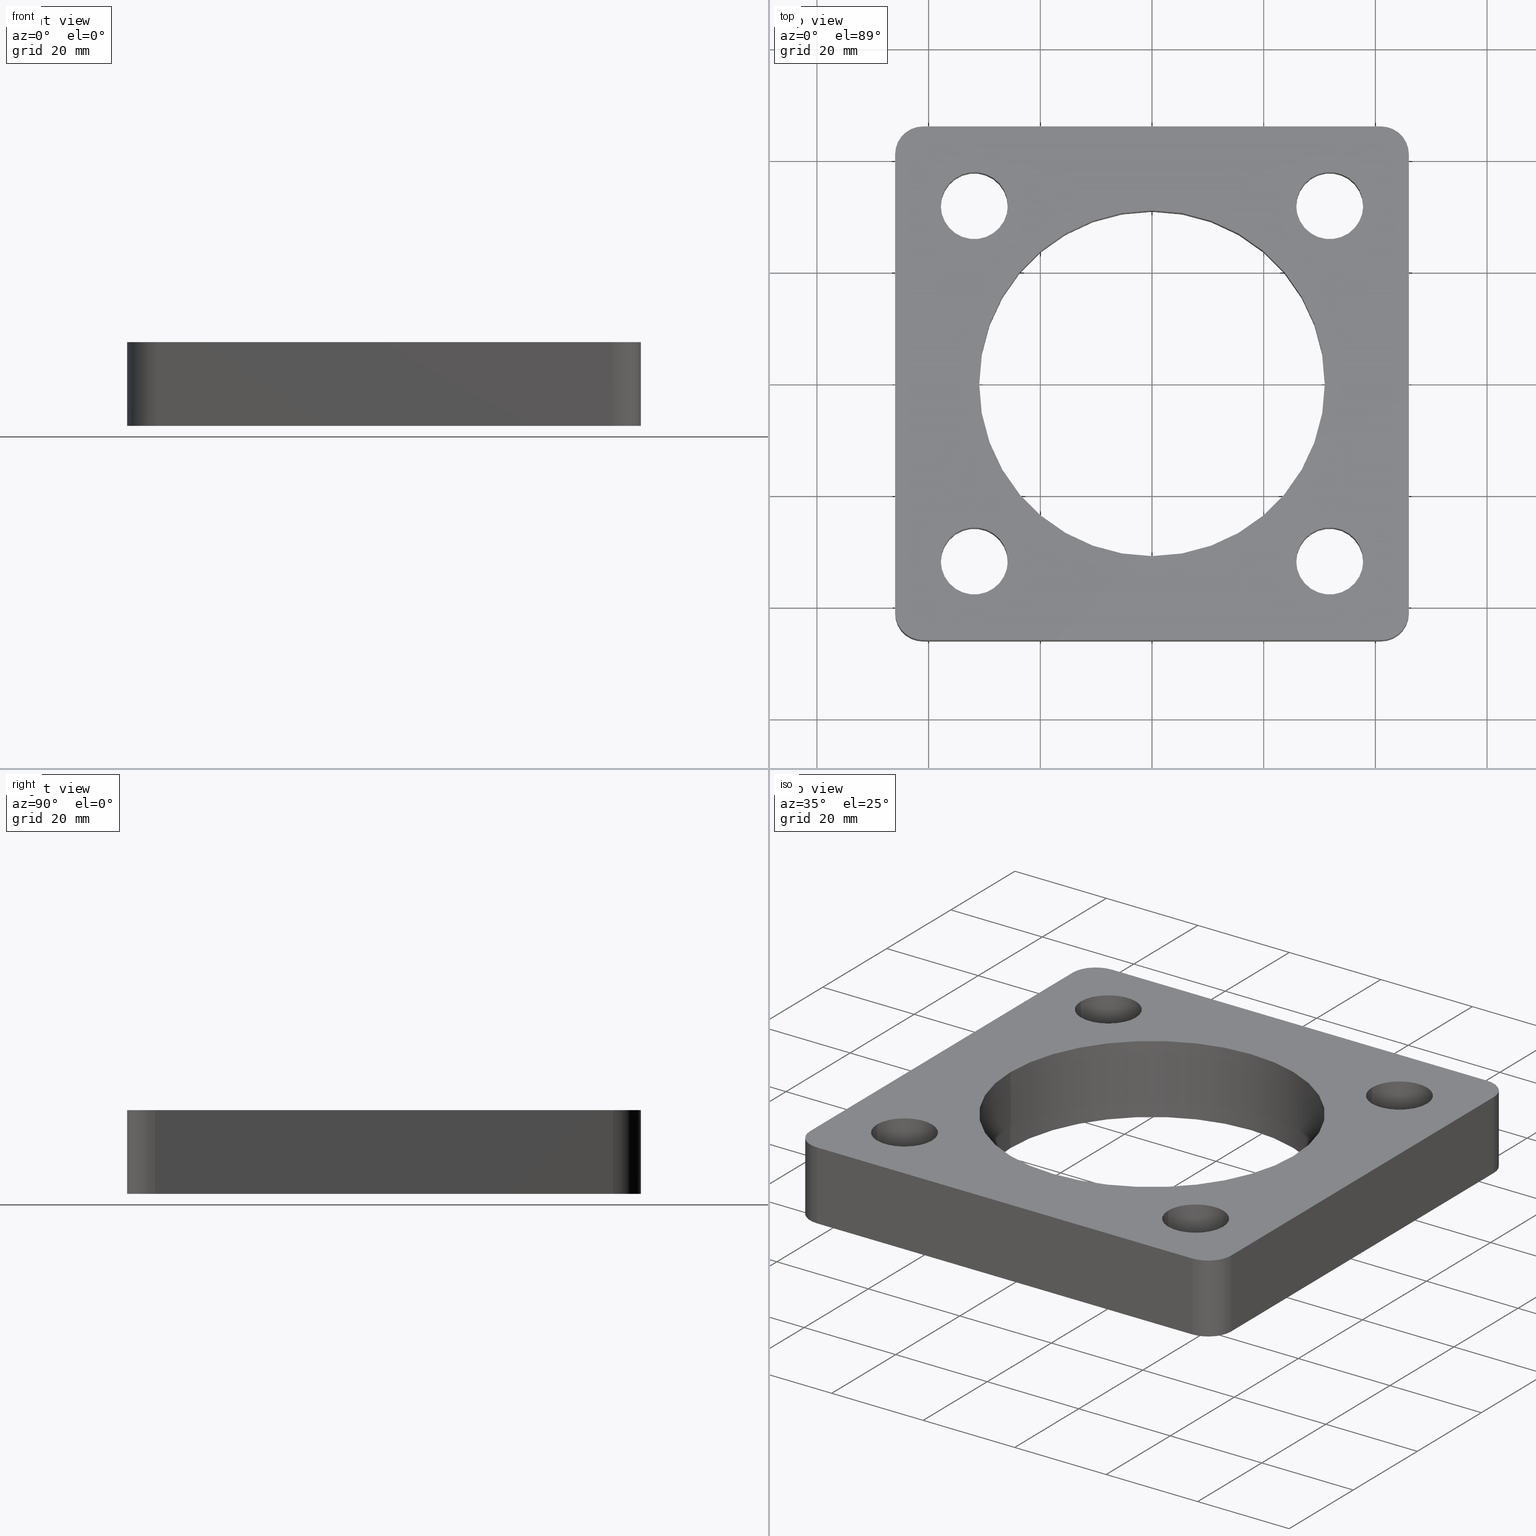
[diagram: canonical four-view strip — front | top / right | iso, engineering-drawing reading convention]
A machine part, canonical four-view strip (front | top / right | iso — engineering-drawing reading convention). The complete STEP part file that produces these views, byte-faithful:
ISO-10303-21;
HEADER;
FILE_DESCRIPTION (( 'STEP AP203' ),
    '1' );
FILE_NAME ('3674-35-10_REV_.step',
    '2026-02-06T22:19:26',
    ( '' ),
    ( '' ),
    'SwSTEP 2.0',
    'SolidWorks 2025',
    '' );
FILE_SCHEMA (( 'CONFIG_CONTROL_DESIGN' ));
ENDSEC;

DATA;
#1 = ORIENTED_EDGE ( 'NONE', *, *, #337, .T. ) ;
#2 = LINE ( 'NONE', #463, #218 ) ;
#3 = DIRECTION ( 'NONE',  ( 0.000000000000000000, 0.000000000000000000, 1.000000000000000000 ) ) ;
#4 = COORDINATED_UNIVERSAL_TIME_OFFSET ( 10, 0, .AHEAD. ) ;
#5 = AXIS2_PLACEMENT_3D ( 'NONE', #402, #3, #277 ) ;
#6 = AXIS2_PLACEMENT_3D ( 'NONE', #617, #609, #262 ) ;
#7 = DIRECTION ( 'NONE',  ( 0.000000000000000000, -0.000000000000000000, -1.000000000000000000 ) ) ;
#8 = EDGE_CURVE ( 'NONE', #148, #709, #396, .T. ) ;
#9 = DIRECTION ( 'NONE',  ( -0.000000000000000000, -0.000000000000000000, 1.000000000000000000 ) ) ;
#10 = ORIENTED_EDGE ( 'NONE', *, *, #691, .T. ) ;
#11 = LINE ( 'NONE', #587, #91 ) ;
#12 = ADVANCED_FACE ( 'NONE', ( #103, #270, #219, #743, #627, #442 ), #570, .F. ) ;
#13 = CARTESIAN_POINT ( 'NONE',  ( 0.000000000000000000, 0.000000000000000000, -1.000000000000000000 ) ) ;
#14 = ORIENTED_EDGE ( 'NONE', *, *, #491, .T. ) ;
#15 = CARTESIAN_POINT ( 'NONE',  ( 30.95000000000000284, 0.000000000000000000, -1.000000000000000000 ) ) ;
#16 = ORIENTED_EDGE ( 'NONE', *, *, #725, .F. ) ;
#17 = DIRECTION ( 'NONE',  ( 1.000000000000000000, 0.000000000000000000, 0.000000000000000000 ) ) ;
#18 = AXIS2_PLACEMENT_3D ( 'NONE', #636, #405, #575 ) ;
#19 = EDGE_LOOP ( 'NONE', ( #674, #339, #304, #93 ) ) ;
#20 = EDGE_CURVE ( 'NONE', #26, #718, #27, .T. ) ;
#21 = DIRECTION ( 'NONE',  ( 0.000000000000000000, -0.000000000000000000, -1.000000000000000000 ) ) ;
#22 = PERSON_AND_ORGANIZATION_ROLE ( 'classification_officer' ) ;
#23 = EDGE_LOOP ( 'NONE', ( #476, #330 ) ) ;
#24 = CARTESIAN_POINT ( 'NONE',  ( -25.81980515339504123, 31.81980515339424187, -16.00000000000000000 ) ) ;
#25 = APPROVAL_STATUS ( 'not_yet_approved' ) ;
#26 = VERTEX_POINT ( 'NONE', #447 ) ;
#27 = CIRCLE ( 'NONE', #694, 5.999999999999998224 ) ;
#28 = EDGE_CURVE ( 'NONE', #510, #75, #551, .T. ) ;
#29 = VECTOR ( 'NONE', #314, 1000.000000000000000 ) ;
#30 = LINE ( 'NONE', #602, #64 ) ;
#31 = EDGE_LOOP ( 'NONE', ( #99, #393, #559, #193 ) ) ;
#32 = FACE_OUTER_BOUND ( 'NONE', #601, .T. ) ;
#33 = EDGE_CURVE ( 'NONE', #404, #670, #614, .T. ) ;
#34 = ORIENTED_EDGE ( 'NONE', *, *, #299, .T. ) ;
#35 = CARTESIAN_POINT ( 'NONE',  ( 31.81980515339457583, 31.81980515339470728, -16.00000000000000000 ) ) ;
#36 = VERTEX_POINT ( 'NONE', #163 ) ;
#37 = ADVANCED_FACE ( 'NONE', ( #391 ), #624, .F. ) ;
#38 = FACE_OUTER_BOUND ( 'NONE', #69, .T. ) ;
#39 = DIRECTION ( 'NONE',  ( 1.000000000000000000, 0.000000000000000000, 0.000000000000000000 ) ) ;
#40 = CIRCLE ( 'NONE', #460, 5.999999999999998224 ) ;
#41 = EDGE_LOOP ( 'NONE', ( #278, #383, #365, #196 ) ) ;
#42 = CARTESIAN_POINT ( 'NONE',  ( -41.00000000000000000, -41.00000000000000000, -1.000000000000000000 ) ) ;
#43 = DIRECTION ( 'NONE',  ( 0.000000000000000000, 0.000000000000000000, 1.000000000000000000 ) ) ;
#44 = ORIENTED_EDGE ( 'NONE', *, *, #150, .F. ) ;
#45 = DIRECTION ( 'NONE',  ( -0.000000000000000000, -0.000000000000000000, 1.000000000000000000 ) ) ;
#46 = FACE_OUTER_BOUND ( 'NONE', #611, .T. ) ;
#47 = CARTESIAN_POINT ( 'NONE',  ( -41.00000000000000000, -46.00000000000000711, -16.00000000000000000 ) ) ;
#48 = LINE ( 'NONE', #507, #461 ) ;
#49 = ORIENTED_EDGE ( 'NONE', *, *, #160, .F. ) ;
#50 = CARTESIAN_POINT ( 'NONE',  ( 0.000000000000000000, 0.000000000000000000, -1.000000000000000000 ) ) ;
#51 = SECURITY_CLASSIFICATION ( '', '', #589 ) ;
#52 = DIRECTION ( 'NONE',  ( -0.000000000000000000, -0.000000000000000000, -1.000000000000000000 ) ) ;
#53 = CIRCLE ( 'NONE', #310, 5.999999999999998224 ) ;
#54 = FACE_OUTER_BOUND ( 'NONE', #155, .T. ) ;
#55 = ORIENTED_EDGE ( 'NONE', *, *, #477, .F. ) ;
#56 = DIRECTION ( 'NONE',  ( -0.000000000000000000, -0.000000000000000000, -1.000000000000000000 ) ) ;
#57 = APPROVAL ( #83, 'UNSPECIFIED' ) ;
#58 = CARTESIAN_POINT ( 'NONE',  ( 0.000000000000000000, 0.000000000000000000, -16.00000000000000000 ) ) ;
#59 = DIRECTION ( 'NONE',  ( -0.000000000000000000, -0.000000000000000000, -1.000000000000000000 ) ) ;
#60 = PERSON_AND_ORGANIZATION ( #659, #87 ) ;
#61 = ADVANCED_FACE ( 'NONE', ( #676 ), #484, .F. ) ;
#62 = DIRECTION ( 'NONE',  ( 1.000000000000000000, 0.000000000000000000, 0.000000000000000000 ) ) ;
#63 = ORIENTED_EDGE ( 'NONE', *, *, #150, .T. ) ;
#64 = VECTOR ( 'NONE', #312, 1000.000000000000000 ) ;
#65 = CIRCLE ( 'NONE', #480, 5.999999999999998224 ) ;
#66 =( GEOMETRIC_REPRESENTATION_CONTEXT ( 3 ) GLOBAL_UNCERTAINTY_ASSIGNED_CONTEXT ( ( #327 ) ) GLOBAL_UNIT_ASSIGNED_CONTEXT ( ( #343, #397, #639 ) ) REPRESENTATION_CONTEXT ( 'NONE', 'WORKASPACE' ) );
#67 = CIRCLE ( 'NONE', #387, 5.999999999999998224 ) ;
#68 = LINE ( 'NONE', #647, #579 ) ;
#69 = EDGE_LOOP ( 'NONE', ( #222, #485, #34, #209 ) ) ;
#70 = CARTESIAN_POINT ( 'NONE',  ( 31.81980515339457583, 31.81980515339470728, -16.00000000000000000 ) ) ;
#71 = DIRECTION ( 'NONE',  ( 0.000000000000000000, 0.000000000000000000, 1.000000000000000000 ) ) ;
#72 = ORIENTED_EDGE ( 'NONE', *, *, #268, .T. ) ;
#73 = CARTESIAN_POINT ( 'NONE',  ( -30.95000000000000284, 3.790281843361058831E-15, -16.00000000000000000 ) ) ;
#74 = COORDINATED_UNIVERSAL_TIME_OFFSET ( 10, 0, .AHEAD. ) ;
#75 = VERTEX_POINT ( 'NONE', #619 ) ;
#76 = CIRCLE ( 'NONE', #444, 5.999999999999998224 ) ;
#77 = LINE ( 'NONE', #533, #385 ) ;
#78 = AXIS2_PLACEMENT_3D ( 'NONE', #70, #123, #726 ) ;
#79 = VECTOR ( 'NONE', #683, 1000.000000000000000 ) ;
#80 = DATE_AND_TIME ( #369, #335 ) ;
#81 = EDGE_LOOP ( 'NONE', ( #473, #417, #722, #608, #739, #520, #200, #357 ) ) ;
#82 = DIRECTION ( 'NONE',  ( -0.000000000000000000, -0.000000000000000000, -1.000000000000000000 ) ) ;
#83 = APPROVAL_STATUS ( 'not_yet_approved' ) ;
#84 = EDGE_LOOP ( 'NONE', ( #180, #590, #729, #328 ) ) ;
#85 = COORDINATED_UNIVERSAL_TIME_OFFSET ( 10, 0, .AHEAD. ) ;
#86 = ORIENTED_EDGE ( 'NONE', *, *, #120, .T. ) ;
#87 = ORGANIZATION ( 'UNSPECIFIED', 'UNSPECIFIED', '' ) ;
#88 = EDGE_CURVE ( 'NONE', #709, #334, #260, .T. ) ;
#89 = VECTOR ( 'NONE', #388, 1000.000000000000000 ) ;
#90 = DIRECTION ( 'NONE',  ( -3.469446951953615372E-15, 1.000000000000000000, 0.000000000000000000 ) ) ;
#91 = VECTOR ( 'NONE', #82, 1000.000000000000000 ) ;
#92 = AXIS2_PLACEMENT_3D ( 'NONE', #389, #621, #207 ) ;
#93 = ORIENTED_EDGE ( 'NONE', *, *, #622, .T. ) ;
#94 = DIRECTION ( 'NONE',  ( 0.000000000000000000, -0.000000000000000000, -1.000000000000000000 ) ) ;
#95 = EDGE_LOOP ( 'NONE', ( #690, #316 ) ) ;
#96 = CARTESIAN_POINT ( 'NONE',  ( 0.000000000000000000, 0.000000000000000000, -16.00000000000000000 ) ) ;
#97 = PRODUCT_DEFINITION_SHAPE ( 'NONE', 'NONE',  #294 ) ;
#98 = CARTESIAN_POINT ( 'NONE',  ( -41.00000000000000711, 40.99999999999999289, -16.00000000000000000 ) ) ;
#99 = ORIENTED_EDGE ( 'NONE', *, *, #713, .T. ) ;
#100 = CARTESIAN_POINT ( 'NONE',  ( 40.99999999999999289, 40.99999999999999289, -1.000000000000000000 ) ) ;
#101 = LINE ( 'NONE', #318, #528 ) ;
#102 = CLOSED_SHELL ( 'NONE', ( #325, #37, #403, #61, #703, #394, #141, #615, #228, #536, #634, #448, #165, #562, #257, #237, #673, #12, #595, #668 ) ) ;
#103 = FACE_BOUND ( 'NONE', #235, .T. ) ;
#104 = VECTOR ( 'NONE', #431, 1000.000000000000000 ) ;
#105 = LINE ( 'NONE', #149, #518 ) ;
#106 = LINE ( 'NONE', #119, #592 ) ;
#107 = VERTEX_POINT ( 'NONE', #197 ) ;
#108 = FACE_BOUND ( 'NONE', #23, .T. ) ;
#109 = CARTESIAN_POINT ( 'NONE',  ( 25.81980515339481741, -31.81980515339446214, -1.000000000000000888 ) ) ;
#110 = VERTEX_POINT ( 'NONE', #723 ) ;
#111 = DIRECTION ( 'NONE',  ( 0.000000000000000000, -0.000000000000000000, -1.000000000000000000 ) ) ;
#112 = ORIENTED_EDGE ( 'NONE', *, *, #241, .F. ) ;
#113 = EDGE_CURVE ( 'NONE', #332, #561, #437, .T. ) ;
#114 = FACE_OUTER_BOUND ( 'NONE', #714, .T. ) ;
#115 = EDGE_LOOP ( 'NONE', ( #605, #500 ) ) ;
#116 = AXIS2_PLACEMENT_3D ( 'NONE', #554, #199, #94 ) ;
#117 = DIRECTION ( 'NONE',  ( -0.000000000000000000, -0.000000000000000000, 1.000000000000000000 ) ) ;
#118 = ORIENTED_EDGE ( 'NONE', *, *, #305, .F. ) ;
#119 = CARTESIAN_POINT ( 'NONE',  ( 37.81980515339481741, -31.81980515339446214, -16.00000000000000000 ) ) ;
#120 = EDGE_CURVE ( 'NONE', #126, #466, #720, .T. ) ;
#121 = DIRECTION ( 'NONE',  ( -0.000000000000000000, -0.000000000000000000, 1.000000000000000000 ) ) ;
#122 = DIRECTION ( 'NONE',  ( -0.000000000000000000, -0.000000000000000000, 1.000000000000000000 ) ) ;
#123 = DIRECTION ( 'NONE',  ( -0.000000000000000000, -0.000000000000000000, 1.000000000000000000 ) ) ;
#124 = AXIS2_PLACEMENT_3D ( 'NONE', #13, #71, #168 ) ;
#125 = PERSON_AND_ORGANIZATION ( #659, #87 ) ;
#126 = VERTEX_POINT ( 'NONE', #672 ) ;
#127 = DIRECTION ( 'NONE',  ( -3.469446951953615372E-15, 1.000000000000000000, 0.000000000000000000 ) ) ;
#128 = ADVANCED_BREP_SHAPE_REPRESENTATION ( '3674-35-10_REV_', ( #496, #195 ), #66 ) ;
#129 = COORDINATED_UNIVERSAL_TIME_OFFSET ( 10, 0, .AHEAD. ) ;
#130 = ORIENTED_EDGE ( 'NONE', *, *, #354, .F. ) ;
#131 = CARTESIAN_POINT ( 'NONE',  ( 31.81980515339481741, -31.81980515339446214, -16.00000000000000000 ) ) ;
#132 = EDGE_CURVE ( 'NONE', #547, #213, #30, .T. ) ;
#133 = ORIENTED_EDGE ( 'NONE', *, *, #744, .T. ) ;
#134 = DIRECTION ( 'NONE',  ( 0.000000000000000000, 0.000000000000000000, 1.000000000000000000 ) ) ;
#135 = PERSON_AND_ORGANIZATION_ROLE ( 'creator' ) ;
#136 = VERTEX_POINT ( 'NONE', #254 ) ;
#137 = CARTESIAN_POINT ( 'NONE',  ( 40.99999999999998579, 45.99999999999999289, -16.00000000000000000 ) ) ;
#138 = EDGE_LOOP ( 'NONE', ( #152, #239, #688, #118 ) ) ;
#139 = PERSON_AND_ORGANIZATION ( #659, #87 ) ;
#140 = ORIENTED_EDGE ( 'NONE', *, *, #88, .T. ) ;
#141 = ADVANCED_FACE ( 'NONE', ( #544 ), #426, .T. ) ;
#142 = DIRECTION ( 'NONE',  ( 1.000000000000000000, 0.000000000000000000, 0.000000000000000000 ) ) ;
#143 = SHAPE_DEFINITION_REPRESENTATION ( #97, #128 ) ;
#144 = ORIENTED_EDGE ( 'NONE', *, *, #663, .T. ) ;
#145 = CIRCLE ( 'NONE', #399, 5.999999999999998224 ) ;
#146 = CARTESIAN_POINT ( 'NONE',  ( 31.81980515339481741, -31.81980515339446214, -16.00000000000000000 ) ) ;
#147 = AXIS2_PLACEMENT_3D ( 'NONE', #229, #7, #233 ) ;
#148 = VERTEX_POINT ( 'NONE', #610 ) ;
#149 = CARTESIAN_POINT ( 'NONE',  ( 25.81980515339481741, -31.81980515339446214, -16.00000000000000000 ) ) ;
#150 = EDGE_CURVE ( 'NONE', #36, #620, #419, .T. ) ;
#151 = DIRECTION ( 'NONE',  ( 0.000000000000000000, 0.000000000000000000, 1.000000000000000000 ) ) ;
#152 = ORIENTED_EDGE ( 'NONE', *, *, #588, .F. ) ;
#153 = CARTESIAN_POINT ( 'NONE',  ( -41.00000000000000000, -41.00000000000000000, -16.00000000000000000 ) ) ;
#154 = DIRECTION ( 'NONE',  ( 0.000000000000000000, -0.000000000000000000, 1.000000000000000000 ) ) ;
#155 = EDGE_LOOP ( 'NONE', ( #370, #130, #292, #55 ) ) ;
#156 = CARTESIAN_POINT ( 'NONE',  ( 37.81980515339481741, -31.81980515339446214, -1.000000000000000888 ) ) ;
#157 = CARTESIAN_POINT ( 'NONE',  ( -46.00000000000000711, 45.99999999999999289, -16.00000000000000000 ) ) ;
#158 = VECTOR ( 'NONE', #524, 1000.000000000000000 ) ;
#159 = CARTESIAN_POINT ( 'NONE',  ( 46.00000000000001421, -41.00000000000000000, -16.00000000000000000 ) ) ;
#160 = EDGE_CURVE ( 'NONE', #523, #309, #53, .T. ) ;
#161 = CARTESIAN_POINT ( 'NONE',  ( 30.95000000000000284, 0.000000000000000000, -16.00000000000000000 ) ) ;
#162 = FACE_OUTER_BOUND ( 'NONE', #31, .T. ) ;
#163 = CARTESIAN_POINT ( 'NONE',  ( -30.95000000000000284, 3.790281843361058831E-15, -16.00000000000000000 ) ) ;
#164 = DIRECTION ( 'NONE',  ( 1.000000000000000000, 0.000000000000000000, 0.000000000000000000 ) ) ;
#165 = ADVANCED_FACE ( 'NONE', ( #32 ), #256, .T. ) ;
#166 = DIRECTION ( 'NONE',  ( 1.000000000000000000, 0.000000000000000000, 0.000000000000000000 ) ) ;
#167 = EDGE_LOOP ( 'NONE', ( #243, #255 ) ) ;
#168 = DIRECTION ( 'NONE',  ( 1.000000000000000000, 0.000000000000000000, 0.000000000000000000 ) ) ;
#169 = ORIENTED_EDGE ( 'NONE', *, *, #382, .F. ) ;
#170 = CARTESIAN_POINT ( 'NONE',  ( -31.81980515339503768, 31.81980515339424187, -16.00000000000000000 ) ) ;
#171 = EDGE_CURVE ( 'NONE', #148, #586, #101, .T. ) ;
#172 = CARTESIAN_POINT ( 'NONE',  ( 31.81980515339457583, 31.81980515339470728, -16.00000000000000000 ) ) ;
#173 = AXIS2_PLACEMENT_3D ( 'NONE', #50, #395, #398 ) ;
#174 = DATE_AND_TIME ( #628, #603 ) ;
#175 = AXIS2_PLACEMENT_3D ( 'NONE', #366, #472, #306 ) ;
#176 = CARTESIAN_POINT ( 'NONE',  ( -31.81980515339503768, 31.81980515339424187, -1.000000000000000888 ) ) ;
#177 = CARTESIAN_POINT ( 'NONE',  ( -41.00000000000000000, -46.00000000000000711, -16.00000000000000000 ) ) ;
#178 = DIRECTION ( 'NONE',  ( 0.000000000000000000, -0.000000000000000000, 1.000000000000000000 ) ) ;
#179 = CARTESIAN_POINT ( 'NONE',  ( -37.81980515339503768, 31.81980515339424187, -16.00000000000000000 ) ) ;
#180 = ORIENTED_EDGE ( 'NONE', *, *, #721, .F. ) ;
#181 = CYLINDRICAL_SURFACE ( 'NONE', #175, 4.999999999999997335 ) ;
#182 = VECTOR ( 'NONE', #121, 1000.000000000000000 ) ;
#183 = ORIENTED_EDGE ( 'NONE', *, *, #113, .T. ) ;
#184 = CIRCLE ( 'NONE', #715, 5.000000000000004441 ) ;
#185 = DIRECTION ( 'NONE',  ( 1.000000000000000000, 0.000000000000000000, 0.000000000000000000 ) ) ;
#186 = VERTEX_POINT ( 'NONE', #669 ) ;
#187 = CC_DESIGN_PERSON_AND_ORGANIZATION_ASSIGNMENT ( #223, #340, ( #294 ) ) ;
#188 = CARTESIAN_POINT ( 'NONE',  ( 37.81980515339457583, 31.81980515339470728, -16.00000000000000000 ) ) ;
#189 = APPROVAL_ROLE ( '' ) ;
#190 = ORIENTED_EDGE ( 'NONE', *, *, #171, .T. ) ;
#191 = DIRECTION ( 'NONE',  ( 0.000000000000000000, 0.000000000000000000, 1.000000000000000000 ) ) ;
#192 = EDGE_CURVE ( 'NONE', #586, #404, #184, .T. ) ;
#193 = ORIENTED_EDGE ( 'NONE', *, *, #656, .T. ) ;
#194 = CIRCLE ( 'NONE', #680, 5.999999999999998224 ) ;
#195 = AXIS2_PLACEMENT_3D ( 'NONE', #291, #452, #238 ) ;
#196 = ORIENTED_EDGE ( 'NONE', *, *, #362, .F. ) ;
#197 = CARTESIAN_POINT ( 'NONE',  ( -46.00000000000000711, 40.99999999999999289, -1.000000000000000000 ) ) ;
#198 = ORIENTED_EDGE ( 'NONE', *, *, #731, .T. ) ;
#199 = DIRECTION ( 'NONE',  ( 0.000000000000000000, -1.000000000000000000, 0.000000000000000000 ) ) ;
#200 = ORIENTED_EDGE ( 'NONE', *, *, #622, .F. ) ;
#201 = CARTESIAN_POINT ( 'NONE',  ( 46.00000000000001421, -41.00000000000000711, -1.000000000000000000 ) ) ;
#202 = EDGE_CURVE ( 'NONE', #75, #510, #145, .T. ) ;
#203 = VECTOR ( 'NONE', #142, 1000.000000000000000 ) ;
#204 = CARTESIAN_POINT ( 'NONE',  ( 31.81980515339481741, -31.81980515339446214, -16.00000000000000000 ) ) ;
#205 = CIRCLE ( 'NONE', #682, 4.999999999999997335 ) ;
#206 = ORIENTED_EDGE ( 'NONE', *, *, #217, .F. ) ;
#207 = DIRECTION ( 'NONE',  ( 1.000000000000000000, 0.000000000000000000, 0.000000000000000000 ) ) ;
#208 = DIRECTION ( 'NONE',  ( 0.000000000000000000, 1.000000000000000000, 0.000000000000000000 ) ) ;
#209 = ORIENTED_EDGE ( 'NONE', *, *, #315, .F. ) ;
#210 = LINE ( 'NONE', #581, #351 ) ;
#211 = DIRECTION ( 'NONE',  ( 8.462065736472231082E-17, -1.000000000000000000, 0.000000000000000000 ) ) ;
#212 = EDGE_CURVE ( 'NONE', #107, #582, #727, .T. ) ;
#213 = VERTEX_POINT ( 'NONE', #440 ) ;
#214 = DIRECTION ( 'NONE',  ( -0.000000000000000000, -0.000000000000000000, -1.000000000000000000 ) ) ;
#215 = FACE_OUTER_BOUND ( 'NONE', #84, .T. ) ;
#216 = CIRCLE ( 'NONE', #459, 5.999999999999998224 ) ;
#217 = EDGE_CURVE ( 'NONE', #332, #110, #517, .T. ) ;
#218 = VECTOR ( 'NONE', #571, 1000.000000000000000 ) ;
#219 = FACE_BOUND ( 'NONE', #167, .T. ) ;
#220 = DIRECTION ( 'NONE',  ( 0.000000000000000000, 0.000000000000000000, 1.000000000000000000 ) ) ;
#221 = CARTESIAN_POINT ( 'NONE',  ( -37.81980515339457583, -31.81980515339470728, -1.000000000000000888 ) ) ;
#222 = ORIENTED_EDGE ( 'NONE', *, *, #663, .F. ) ;
#223 = PERSON_AND_ORGANIZATION ( #659, #87 ) ;
#224 = EDGE_LOOP ( 'NONE', ( #635, #535 ) ) ;
#225 = CARTESIAN_POINT ( 'NONE',  ( -31.81980515339457583, -31.81980515339470728, -1.000000000000000888 ) ) ;
#226 = DIRECTION ( 'NONE',  ( -0.000000000000000000, 0.000000000000000000, 1.000000000000000000 ) ) ;
#227 = DIRECTION ( 'NONE',  ( 0.000000000000000000, 0.000000000000000000, 1.000000000000000000 ) ) ;
#228 = ADVANCED_FACE ( 'NONE', ( #264 ), #492, .T. ) ;
#229 = CARTESIAN_POINT ( 'NONE',  ( 41.00000000000000711, -41.00000000000000711, -16.00000000000000000 ) ) ;
#230 = AXIS2_PLACEMENT_3D ( 'NONE', #482, #386, #308 ) ;
#231 = DIRECTION ( 'NONE',  ( 1.000000000000000000, 0.000000000000000000, 0.000000000000000000 ) ) ;
#232 = AXIS2_PLACEMENT_3D ( 'NONE', #745, #111, #267 ) ;
#233 = DIRECTION ( 'NONE',  ( 1.000000000000000000, 0.000000000000000000, 0.000000000000000000 ) ) ;
#234 = LINE ( 'NONE', #283, #182 ) ;
#235 = EDGE_LOOP ( 'NONE', ( #483, #63 ) ) ;
#236 = LINE ( 'NONE', #408, #593 ) ;
#237 = ADVANCED_FACE ( 'NONE', ( #114 ), #569, .F. ) ;
#238 = DIRECTION ( 'NONE',  ( 1.000000000000000000, 0.000000000000000000, 0.000000000000000000 ) ) ;
#239 = ORIENTED_EDGE ( 'NONE', *, *, #248, .F. ) ;
#240 = DIRECTION ( 'NONE',  ( -2.262682794752357144E-16, 1.000000000000000000, 0.000000000000000000 ) ) ;
#241 = EDGE_CURVE ( 'NONE', #368, #532, #194, .T. ) ;
#242 = DATE_TIME_ROLE ( 'classification_date' ) ;
#243 = ORIENTED_EDGE ( 'NONE', *, *, #28, .T. ) ;
#244 = AXIS2_PLACEMENT_3D ( 'NONE', #273, #342, #563 ) ;
#245 = VECTOR ( 'NONE', #521, 1000.000000000000000 ) ;
#246 = DIRECTION ( 'NONE',  ( 0.000000000000000000, 0.000000000000000000, 1.000000000000000000 ) ) ;
#247 = ORIENTED_EDGE ( 'NONE', *, *, #160, .T. ) ;
#248 = EDGE_CURVE ( 'NONE', #532, #368, #76, .T. ) ;
#249 = CYLINDRICAL_SURFACE ( 'NONE', #350, 4.999999999999997335 ) ;
#250 = ORIENTED_EDGE ( 'NONE', *, *, #241, .T. ) ;
#251 = APPROVAL_DATE_TIME ( #531, #436 ) ;
#252 = ORIENTED_EDGE ( 'NONE', *, *, #132, .F. ) ;
#253 = AXIS2_PLACEMENT_3D ( 'NONE', #433, #661, #371 ) ;
#254 = CARTESIAN_POINT ( 'NONE',  ( 45.99999999999999289, 40.99999999999999289, -1.000000000000000888 ) ) ;
#255 = ORIENTED_EDGE ( 'NONE', *, *, #202, .T. ) ;
#256 = CYLINDRICAL_SURFACE ( 'NONE', #502, 4.999999999999997335 ) ;
#257 = ADVANCED_FACE ( 'NONE', ( #215 ), #336, .F. ) ;
#258 = ORIENTED_EDGE ( 'NONE', *, *, #354, .T. ) ;
#259 = DIRECTION ( 'NONE',  ( 0.000000000000000000, 0.000000000000000000, 1.000000000000000000 ) ) ;
#260 = LINE ( 'NONE', #613, #203 ) ;
#261 = VERTEX_POINT ( 'NONE', #109 ) ;
#262 = DIRECTION ( 'NONE',  ( 7.542275982507857147E-17, -1.000000000000000000, 0.000000000000000000 ) ) ;
#263 = AXIS2_PLACEMENT_3D ( 'NONE', #457, #280, #633 ) ;
#264 = FACE_OUTER_BOUND ( 'NONE', #19, .T. ) ;
#265 = AXIS2_PLACEMENT_3D ( 'NONE', #730, #686, #556 ) ;
#266 = ORIENTED_EDGE ( 'NONE', *, *, #606, .F. ) ;
#267 = DIRECTION ( 'NONE',  ( 1.000000000000000000, -1.387778780781446464E-15, 0.000000000000000000 ) ) ;
#268 = EDGE_CURVE ( 'NONE', #281, #538, #338, .T. ) ;
#269 = DIRECTION ( 'NONE',  ( 0.000000000000000000, -0.000000000000000000, 1.000000000000000000 ) ) ;
#270 = FACE_BOUND ( 'NONE', #662, .T. ) ;
#271 = CARTESIAN_POINT ( 'NONE',  ( 46.00000000000001421, -41.00000000000000000, -16.00000000000000000 ) ) ;
#272 = EDGE_CURVE ( 'NONE', #701, #341, #542, .T. ) ;
#273 = CARTESIAN_POINT ( 'NONE',  ( 0.000000000000000000, 0.000000000000000000, -16.00000000000000000 ) ) ;
#274 = ORIENTED_EDGE ( 'NONE', *, *, #416, .T. ) ;
#275 = DIRECTION ( 'NONE',  ( -1.000000000000000000, -0.000000000000000000, -0.000000000000000000 ) ) ;
#276 = ORIENTED_EDGE ( 'NONE', *, *, #212, .T. ) ;
#277 = DIRECTION ( 'NONE',  ( 1.000000000000000000, 0.000000000000000000, 0.000000000000000000 ) ) ;
#278 = ORIENTED_EDGE ( 'NONE', *, *, #33, .F. ) ;
#279 = DIRECTION ( 'NONE',  ( -0.000000000000000000, -0.000000000000000000, 1.000000000000000000 ) ) ;
#280 = DIRECTION ( 'NONE',  ( -0.000000000000000000, -0.000000000000000000, 1.000000000000000000 ) ) ;
#281 = VERTEX_POINT ( 'NONE', #285 ) ;
#282 = EDGE_CURVE ( 'NONE', #186, #213, #654, .T. ) ;
#283 = CARTESIAN_POINT ( 'NONE',  ( 30.95000000000000284, 0.000000000000000000, -16.00000000000000000 ) ) ;
#284 = CARTESIAN_POINT ( 'NONE',  ( -31.81980515339503768, 31.81980515339424187, -16.00000000000000000 ) ) ;
#285 = CARTESIAN_POINT ( 'NONE',  ( -30.95000000000000284, 3.790281843361058831E-15, -1.000000000000000000 ) ) ;
#286 = CC_DESIGN_APPROVAL ( #646, ( #294 ) ) ;
#287 = MECHANICAL_CONTEXT ( 'NONE', #302, 'mechanical' ) ;
#288 = ORIENTED_EDGE ( 'NONE', *, *, #458, .F. ) ;
#289 = AXIS2_PLACEMENT_3D ( 'NONE', #42, #220, #392 ) ;
#290 = CYLINDRICAL_SURFACE ( 'NONE', #78, 5.999999999999998224 ) ;
#291 = CARTESIAN_POINT ( 'NONE',  ( 0.000000000000000000, 0.000000000000000000, 0.000000000000000000 ) ) ;
#292 = ORIENTED_EDGE ( 'NONE', *, *, #525, .F. ) ;
#293 = DIRECTION ( 'NONE',  ( -0.000000000000000000, -0.000000000000000000, 1.000000000000000000 ) ) ;
#294 = PRODUCT_DEFINITION ( 'UNKNOWN', '', #568, #441 ) ;
#295 = PERSON_AND_ORGANIZATION_ROLE ( 'design_owner' ) ;
#296 = EDGE_LOOP ( 'NONE', ( #598, #360, #198, #133 ) ) ;
#297 = DIRECTION ( 'NONE',  ( -0.000000000000000000, -0.000000000000000000, 1.000000000000000000 ) ) ;
#298 = COORDINATED_UNIVERSAL_TIME_OFFSET ( 10, 0, .AHEAD. ) ;
#299 = EDGE_CURVE ( 'NONE', #309, #564, #106, .T. ) ;
#300 = EDGE_LOOP ( 'NONE', ( #10, #545, #479, #140 ) ) ;
#301 = DIRECTION ( 'NONE',  ( 0.000000000000000000, 0.000000000000000000, 1.000000000000000000 ) ) ;
#302 = APPLICATION_CONTEXT ( 'configuration controlled 3d designs of mechanical parts and assemblies' ) ;
#303 = PERSON_AND_ORGANIZATION ( #659, #87 ) ;
#304 = ORIENTED_EDGE ( 'NONE', *, *, #382, .T. ) ;
#305 = EDGE_CURVE ( 'NONE', #341, #701, #616, .T. ) ;
#306 = DIRECTION ( 'NONE',  ( 1.000000000000000000, 0.000000000000000000, 0.000000000000000000 ) ) ;
#307 = ORIENTED_EDGE ( 'NONE', *, *, #416, .F. ) ;
#308 = DIRECTION ( 'NONE',  ( 1.000000000000000000, 0.000000000000000000, 0.000000000000000000 ) ) ;
#309 = VERTEX_POINT ( 'NONE', #455 ) ;
#310 = AXIS2_PLACEMENT_3D ( 'NONE', #204, #43, #90 ) ;
#311 = VECTOR ( 'NONE', #9, 1000.000000000000000 ) ;
#312 = DIRECTION ( 'NONE',  ( -0.000000000000000000, -0.000000000000000000, 1.000000000000000000 ) ) ;
#313 = EDGE_LOOP ( 'NONE', ( #112, #488, #596, #16 ) ) ;
#314 = DIRECTION ( 'NONE',  ( 7.542275982507857147E-17, -1.000000000000000000, 0.000000000000000000 ) ) ;
#315 = EDGE_CURVE ( 'NONE', #261, #564, #409, .T. ) ;
#316 = ORIENTED_EDGE ( 'NONE', *, *, #315, .T. ) ;
#317 = DIRECTION ( 'NONE',  ( 1.000000000000000000, 0.000000000000000000, 0.000000000000000000 ) ) ;
#318 = CARTESIAN_POINT ( 'NONE',  ( -41.00000000000000000, -46.00000000000000711, -1.000000000000000000 ) ) ;
#319 = ORIENTED_EDGE ( 'NONE', *, *, #650, .F. ) ;
#320 = DIRECTION ( 'NONE',  ( 0.000000000000000000, 0.000000000000000000, 1.000000000000000000 ) ) ;
#321 = CIRCLE ( 'NONE', #244, 30.95000000000000284 ) ;
#322 = DIRECTION ( 'NONE',  ( -1.000000000000000000, 0.000000000000000000, 0.000000000000000000 ) ) ;
#323 = DIRECTION ( 'NONE',  ( 1.000000000000000000, 0.000000000000000000, 0.000000000000000000 ) ) ;
#324 = FACE_BOUND ( 'NONE', #679, .T. ) ;
#325 = ADVANCED_FACE ( 'NONE', ( #46 ), #572, .F. ) ;
#326 = DIRECTION ( 'NONE',  ( 1.000000000000000000, 0.000000000000000000, 0.000000000000000000 ) ) ;
#327 = UNCERTAINTY_MEASURE_WITH_UNIT (LENGTH_MEASURE( 1.000000000000000082E-05 ), #343, 'distance_accuracy_value', 'NONE');
#328 = ORIENTED_EDGE ( 'NONE', *, *, #282, .F. ) ;
#329 = CARTESIAN_POINT ( 'NONE',  ( -31.81980515339457583, -31.81980515339470728, -16.00000000000000000 ) ) ;
#330 = ORIENTED_EDGE ( 'NONE', *, *, #20, .T. ) ;
#331 = DIRECTION ( 'NONE',  ( -0.000000000000000000, -0.000000000000000000, 1.000000000000000000 ) ) ;
#332 = VERTEX_POINT ( 'NONE', #509 ) ;
#333 = CYLINDRICAL_SURFACE ( 'NONE', #445, 30.95000000000000284 ) ;
#334 = VERTEX_POINT ( 'NONE', #499 ) ;
#335 = LOCAL_TIME ( 9, 19, 26.00000000000000000, #85 ) ;
#336 = CYLINDRICAL_SURFACE ( 'NONE', #740, 5.999999999999998224 ) ;
#337 = EDGE_CURVE ( 'NONE', #547, #412, #216, .T. ) ;
#338 = CIRCLE ( 'NONE', #173, 30.95000000000000284 ) ;
#339 = ORIENTED_EDGE ( 'NONE', *, *, #120, .F. ) ;
#340 = PERSON_AND_ORGANIZATION_ROLE ( 'creator' ) ;
#341 = VERTEX_POINT ( 'NONE', #221 ) ;
#342 = DIRECTION ( 'NONE',  ( 0.000000000000000000, 0.000000000000000000, 1.000000000000000000 ) ) ;
#343 =( LENGTH_UNIT ( ) NAMED_UNIT ( * ) SI_UNIT ( .MILLI., .METRE. ) );
#344 = DIRECTION ( 'NONE',  ( -0.000000000000000000, -0.000000000000000000, -1.000000000000000000 ) ) ;
#345 = CARTESIAN_POINT ( 'NONE',  ( -31.81980515339457583, -31.81980515339470728, -16.00000000000000000 ) ) ;
#346 = EDGE_CURVE ( 'NONE', #620, #36, #321, .T. ) ;
#347 = DIRECTION ( 'NONE',  ( -2.538619720941668955E-16, 1.000000000000000000, 0.000000000000000000 ) ) ;
#348 = CIRCLE ( 'NONE', #503, 4.999999999999997335 ) ;
#349 = AXIS2_PLACEMENT_3D ( 'NONE', #98, #549, #39 ) ;
#350 = AXIS2_PLACEMENT_3D ( 'NONE', #358, #134, #712 ) ;
#351 = VECTOR ( 'NONE', #227, 1000.000000000000000 ) ;
#352 = DIRECTION ( 'NONE',  ( -0.000000000000000000, -0.000000000000000000, 1.000000000000000000 ) ) ;
#353 = EDGE_LOOP ( 'NONE', ( #379, #550, #266, #252 ) ) ;
#354 = EDGE_CURVE ( 'NONE', #582, #148, #665, .T. ) ;
#355 = CARTESIAN_POINT ( 'NONE',  ( -41.00000000000000711, 45.99999999999999289, -1.000000000000000000 ) ) ;
#356 = CALENDAR_DATE ( 2026, 7, 2 ) ;
#357 = ORIENTED_EDGE ( 'NONE', *, *, #650, .T. ) ;
#358 = CARTESIAN_POINT ( 'NONE',  ( -41.00000000000000711, 40.99999999999999289, -16.00000000000000000 ) ) ;
#359 = APPLICATION_CONTEXT ( 'configuration controlled 3d designs of mechanical parts and assemblies' ) ;
#360 = ORIENTED_EDGE ( 'NONE', *, *, #346, .F. ) ;
#361 = CARTESIAN_POINT ( 'NONE',  ( -25.81980515339457583, -31.81980515339470728, -16.00000000000000000 ) ) ;
#362 = EDGE_CURVE ( 'NONE', #670, #334, #530, .T. ) ;
#363 = PERSON_AND_ORGANIZATION ( #659, #87 ) ;
#364 = AXIS2_PLACEMENT_3D ( 'NONE', #176, #59, #326 ) ;
#365 = ORIENTED_EDGE ( 'NONE', *, *, #691, .F. ) ;
#366 = CARTESIAN_POINT ( 'NONE',  ( 41.00000000000000711, -41.00000000000000711, -16.00000000000000000 ) ) ;
#367 = APPROVAL_DATE_TIME ( #651, #57 ) ;
#368 = VERTEX_POINT ( 'NONE', #700 ) ;
#369 = CALENDAR_DATE ( 2026, 7, 2 ) ;
#370 = ORIENTED_EDGE ( 'NONE', *, *, #8, .F. ) ;
#371 = DIRECTION ( 'NONE',  ( 1.000000000000000000, 0.000000000000000000, 0.000000000000000000 ) ) ;
#372 = EDGE_LOOP ( 'NONE', ( #1, #14 ) ) ;
#373 = CC_DESIGN_APPROVAL ( #57, ( #568 ) ) ;
#374 = VECTOR ( 'NONE', #322, 1000.000000000000000 ) ;
#375 = DIRECTION ( 'NONE',  ( 1.000000000000000000, 0.000000000000000000, 0.000000000000000000 ) ) ;
#376 = ORIENTED_EDGE ( 'NONE', *, *, #305, .T. ) ;
#377 = CYLINDRICAL_SURFACE ( 'NONE', #697, 5.999999999999998224 ) ;
#378 = CARTESIAN_POINT ( 'NONE',  ( -46.00000000000000711, 40.99999999999999289, -1.000000000000000000 ) ) ;
#379 = ORIENTED_EDGE ( 'NONE', *, *, #491, .F. ) ;
#380 = DIRECTION ( 'NONE',  ( 1.000000000000000000, 0.000000000000000000, 0.000000000000000000 ) ) ;
#381 = DIRECTION ( 'NONE',  ( 0.000000000000000000, -0.000000000000000000, 1.000000000000000000 ) ) ;
#382 = EDGE_CURVE ( 'NONE', #126, #451, #738, .T. ) ;
#383 = ORIENTED_EDGE ( 'NONE', *, *, #192, .F. ) ;
#384 = LINE ( 'NONE', #552, #618 ) ;
#385 = VECTOR ( 'NONE', #293, 1000.000000000000000 ) ;
#386 = DIRECTION ( 'NONE',  ( -0.000000000000000000, -0.000000000000000000, 1.000000000000000000 ) ) ;
#387 = AXIS2_PLACEMENT_3D ( 'NONE', #498, #214, #164 ) ;
#388 = DIRECTION ( 'NONE',  ( -0.000000000000000000, -0.000000000000000000, -1.000000000000000000 ) ) ;
#389 = CARTESIAN_POINT ( 'NONE',  ( 31.81980515339481741, -31.81980515339446214, -16.00000000000000000 ) ) ;
#390 = DIRECTION ( 'NONE',  ( 1.000000000000000000, 0.000000000000000000, 0.000000000000000000 ) ) ;
#391 = FACE_OUTER_BOUND ( 'NONE', #658, .T. ) ;
#392 = DIRECTION ( 'NONE',  ( 1.000000000000000000, 0.000000000000000000, -0.000000000000000000 ) ) ;
#393 = ORIENTED_EDGE ( 'NONE', *, *, #432, .F. ) ;
#394 = ADVANCED_FACE ( 'NONE', ( #162 ), #742, .T. ) ;
#395 = DIRECTION ( 'NONE',  ( 0.000000000000000000, 0.000000000000000000, 1.000000000000000000 ) ) ;
#396 = LINE ( 'NONE', #47, #630 ) ;
#397 =( NAMED_UNIT ( * ) PLANE_ANGLE_UNIT ( ) SI_UNIT ( $, .RADIAN. ) );
#398 = DIRECTION ( 'NONE',  ( 1.000000000000000000, 0.000000000000000000, 0.000000000000000000 ) ) ;
#399 = AXIS2_PLACEMENT_3D ( 'NONE', #35, #151, #487 ) ;
#400 = DIRECTION ( 'NONE',  ( 0.000000000000000000, 0.000000000000000000, 1.000000000000000000 ) ) ;
#401 = APPLICATION_PROTOCOL_DEFINITION ( 'international standard', 'config_control_design', 1994, #359 ) ;
#402 = CARTESIAN_POINT ( 'NONE',  ( -41.00000000000000000, -41.00000000000000000, -1.000000000000000000 ) ) ;
#403 = ADVANCED_FACE ( 'NONE', ( #465 ), #290, .F. ) ;
#404 = VERTEX_POINT ( 'NONE', #702 ) ;
#405 = DIRECTION ( 'NONE',  ( -0.000000000000000000, -0.000000000000000000, -1.000000000000000000 ) ) ;
#406 = LINE ( 'NONE', #704, #311 ) ;
#407 = ORIENTED_EDGE ( 'NONE', *, *, #272, .T. ) ;
#408 = CARTESIAN_POINT ( 'NONE',  ( 25.81980515339457583, 31.81980515339470728, -16.00000000000000000 ) ) ;
#409 = CIRCLE ( 'NONE', #18, 5.999999999999998224 ) ;
#410 = VECTOR ( 'NONE', #347, 1000.000000000000000 ) ;
#411 = APPLICATION_PROTOCOL_DEFINITION ( 'international standard', 'config_control_design', 1994, #302 ) ;
#412 = VERTEX_POINT ( 'NONE', #591 ) ;
#413 = DIRECTION ( 'NONE',  ( 1.040834085586084572E-14, -1.000000000000000000, 0.000000000000000000 ) ) ;
#414 = EDGE_LOOP ( 'NONE', ( #258, #190, #645, #430, #438, #86, #274, #276 ) ) ;
#415 = CARTESIAN_POINT ( 'NONE',  ( 31.81980515339481741, -31.81980515339446214, -1.000000000000000888 ) ) ;
#416 = EDGE_CURVE ( 'NONE', #466, #107, #205, .T. ) ;
#417 = ORIENTED_EDGE ( 'NONE', *, *, #362, .T. ) ;
#418 = CARTESIAN_POINT ( 'NONE',  ( 25.81980515339481741, -31.81980515339446214, -16.00000000000000000 ) ) ;
#419 = CIRCLE ( 'NONE', #253, 30.95000000000000284 ) ;
#420 = ORIENTED_EDGE ( 'NONE', *, *, #678, .F. ) ;
#421 = CIRCLE ( 'NONE', #632, 4.999999999999997335 ) ;
#422 = CIRCLE ( 'NONE', #265, 5.999999999999998224 ) ;
#423 = PERSON_AND_ORGANIZATION ( #659, #87 ) ;
#424 = EDGE_CURVE ( 'NONE', #564, #261, #40, .T. ) ;
#425 = ORIENTED_EDGE ( 'NONE', *, *, #299, .F. ) ;
#426 = PLANE ( 'NONE',  #116 ) ;
#427 = ORIENTED_EDGE ( 'NONE', *, *, #202, .F. ) ;
#428 = CC_DESIGN_PERSON_AND_ORGANIZATION_ASSIGNMENT ( #139, #475, ( #568 ) ) ;
#429 = CARTESIAN_POINT ( 'NONE',  ( 40.99999999999999289, 40.99999999999999289, -16.00000000000000000 ) ) ;
#430 = ORIENTED_EDGE ( 'NONE', *, *, #432, .T. ) ;
#431 = DIRECTION ( 'NONE',  ( -2.262682794752357144E-16, 1.000000000000000000, -0.000000000000000000 ) ) ;
#432 = EDGE_CURVE ( 'NONE', #404, #136, #597, .T. ) ;
#433 = CARTESIAN_POINT ( 'NONE',  ( 0.000000000000000000, 0.000000000000000000, -16.00000000000000000 ) ) ;
#434 = EDGE_LOOP ( 'NONE', ( #506, #307, #685, #206 ) ) ;
#435 = PLANE ( 'NONE',  #289 ) ;
#436 = APPROVAL ( #25, 'UNSPECIFIED' ) ;
#437 = LINE ( 'NONE', #157, #29 ) ;
#438 = ORIENTED_EDGE ( 'NONE', *, *, #678, .T. ) ;
#439 = CARTESIAN_POINT ( 'NONE',  ( 41.00000000000000711, -46.00000000000000711, -1.000000000000000000 ) ) ;
#440 = CARTESIAN_POINT ( 'NONE',  ( -25.81980515339504123, 31.81980515339424187, -1.000000000000000888 ) ) ;
#441 = DESIGN_CONTEXT ( 'detailed design', #359, 'design' ) ;
#442 = FACE_OUTER_BOUND ( 'NONE', #81, .T. ) ;
#443 = FACE_OUTER_BOUND ( 'NONE', #296, .T. ) ;
#444 = AXIS2_PLACEMENT_3D ( 'NONE', #747, #462, #687 ) ;
#445 = AXIS2_PLACEMENT_3D ( 'NONE', #96, #45, #490 ) ;
#446 = CARTESIAN_POINT ( 'NONE',  ( 40.99999999999998579, 45.99999999999999289, -16.00000000000000000 ) ) ;
#447 = CARTESIAN_POINT ( 'NONE',  ( 25.81980515339457583, 31.81980515339470728, -1.000000000000000888 ) ) ;
#448 = ADVANCED_FACE ( 'NONE', ( #642 ), #249, .T. ) ;
#449 = CYLINDRICAL_SURFACE ( 'NONE', #716, 4.999999999999997335 ) ;
#450 = DIRECTION ( 'NONE',  ( 1.000000000000000000, 0.000000000000000000, 0.000000000000000000 ) ) ;
#451 = VERTEX_POINT ( 'NONE', #137 ) ;
#452 = DIRECTION ( 'NONE',  ( 0.000000000000000000, 0.000000000000000000, 1.000000000000000000 ) ) ;
#453 = ORIENTED_EDGE ( 'NONE', *, *, #248, .T. ) ;
#454 = EDGE_CURVE ( 'NONE', #309, #523, #657, .T. ) ;
#455 = CARTESIAN_POINT ( 'NONE',  ( 37.81980515339481741, -31.81980515339446214, -16.00000000000000000 ) ) ;
#456 = CARTESIAN_POINT ( 'NONE',  ( 31.81980515339457583, 31.81980515339470728, -1.000000000000000888 ) ) ;
#457 = CARTESIAN_POINT ( 'NONE',  ( 0.000000000000000000, 0.000000000000000000, -16.00000000000000000 ) ) ;
#458 = EDGE_CURVE ( 'NONE', #510, #718, #77, .T. ) ;
#459 = AXIS2_PLACEMENT_3D ( 'NONE', #284, #692, #504 ) ;
#460 = AXIS2_PLACEMENT_3D ( 'NONE', #415, #649, #17 ) ;
#461 = VECTOR ( 'NONE', #275, 1000.000000000000000 ) ;
#462 = DIRECTION ( 'NONE',  ( 0.000000000000000000, 0.000000000000000000, 1.000000000000000000 ) ) ;
#463 = CARTESIAN_POINT ( 'NONE',  ( 45.99999999999999289, 40.99999999999999289, -16.00000000000000000 ) ) ;
#464 = ORIENTED_EDGE ( 'NONE', *, *, #557, .F. ) ;
#465 = FACE_OUTER_BOUND ( 'NONE', #746, .T. ) ;
#466 = VERTEX_POINT ( 'NONE', #355 ) ;
#467 = CARTESIAN_POINT ( 'NONE',  ( -41.00000000000000711, 40.99999999999999289, -1.000000000000000000 ) ) ;
#468 = AXIS2_PLACEMENT_3D ( 'NONE', #131, #301, #127 ) ;
#469 = CIRCLE ( 'NONE', #124, 30.95000000000000284 ) ;
#470 = CALENDAR_DATE ( 2026, 7, 2 ) ;
#471 = ORIENTED_EDGE ( 'NONE', *, *, #458, .T. ) ;
#472 = DIRECTION ( 'NONE',  ( 0.000000000000000000, 0.000000000000000000, 1.000000000000000000 ) ) ;
#473 = ORIENTED_EDGE ( 'NONE', *, *, #656, .F. ) ;
#474 = CARTESIAN_POINT ( 'NONE',  ( -41.00000000000000711, 45.99999999999999289, -16.00000000000000000 ) ) ;
#475 = PERSON_AND_ORGANIZATION_ROLE ( 'design_supplier' ) ;
#476 = ORIENTED_EDGE ( 'NONE', *, *, #641, .T. ) ;
#477 = EDGE_CURVE ( 'NONE', #709, #561, #421, .T. ) ;
#478 = AXIS2_PLACEMENT_3D ( 'NONE', #58, #226, #323 ) ;
#479 = ORIENTED_EDGE ( 'NONE', *, *, #8, .T. ) ;
#480 = AXIS2_PLACEMENT_3D ( 'NONE', #707, #191, #413 ) ;
#481 = APPROVAL_PERSON_ORGANIZATION ( #60, #646, #689 ) ;
#482 = CARTESIAN_POINT ( 'NONE',  ( -31.81980515339503768, 31.81980515339424187, -16.00000000000000000 ) ) ;
#483 = ORIENTED_EDGE ( 'NONE', *, *, #346, .T. ) ;
#484 = CYLINDRICAL_SURFACE ( 'NONE', #230, 5.999999999999998224 ) ;
#485 = ORIENTED_EDGE ( 'NONE', *, *, #454, .F. ) ;
#486 = DIRECTION ( 'NONE',  ( 1.000000000000000000, 0.000000000000000000, 0.000000000000000000 ) ) ;
#487 = DIRECTION ( 'NONE',  ( -1.000000000000000000, 0.000000000000000000, 0.000000000000000000 ) ) ;
#488 = ORIENTED_EDGE ( 'NONE', *, *, #588, .T. ) ;
#489 = VECTOR ( 'NONE', #211, 1000.000000000000000 ) ;
#490 = DIRECTION ( 'NONE',  ( 1.000000000000000000, 0.000000000000000000, 0.000000000000000000 ) ) ;
#491 = EDGE_CURVE ( 'NONE', #412, #547, #65, .T. ) ;
#492 = PLANE ( 'NONE',  #631 ) ;
#493 = ORIENTED_EDGE ( 'NONE', *, *, #641, .F. ) ;
#494 = FACE_BOUND ( 'NONE', #95, .T. ) ;
#495 = DIRECTION ( 'NONE',  ( 1.000000000000000000, 0.000000000000000000, 0.000000000000000000 ) ) ;
#496 = MANIFOLD_SOLID_BREP ( 'Cut-Extrude3', #102 ) ;
#497 = DIRECTION ( 'NONE',  ( 1.000000000000000000, 0.000000000000000000, 0.000000000000000000 ) ) ;
#498 = CARTESIAN_POINT ( 'NONE',  ( -31.81980515339503768, 31.81980515339424187, -1.000000000000000888 ) ) ;
#499 = CARTESIAN_POINT ( 'NONE',  ( 41.00000000000000711, -46.00000000000000711, -16.00000000000000000 ) ) ;
#500 = ORIENTED_EDGE ( 'NONE', *, *, #268, .F. ) ;
#501 = DIRECTION ( 'NONE',  ( -0.000000000000000000, -0.000000000000000000, 1.000000000000000000 ) ) ;
#502 = AXIS2_PLACEMENT_3D ( 'NONE', #429, #381, #495 ) ;
#503 = AXIS2_PLACEMENT_3D ( 'NONE', #100, #320, #734 ) ;
#504 = DIRECTION ( 'NONE',  ( 1.040834085586084572E-14, -1.000000000000000000, 0.000000000000000000 ) ) ;
#505 = CC_DESIGN_DATE_AND_TIME_ASSIGNMENT ( #80, #242, ( #51 ) ) ;
#506 = ORIENTED_EDGE ( 'NONE', *, *, #512, .F. ) ;
#507 = CARTESIAN_POINT ( 'NONE',  ( -46.00000000000000711, 45.99999999999999289, -16.00000000000000000 ) ) ;
#508 = APPROVAL_PERSON_ORGANIZATION ( #423, #436, #189 ) ;
#509 = CARTESIAN_POINT ( 'NONE',  ( -46.00000000000000711, 40.99999999999999289, -16.00000000000000000 ) ) ;
#510 = VERTEX_POINT ( 'NONE', #188 ) ;
#511 = FACE_OUTER_BOUND ( 'NONE', #313, .T. ) ;
#512 = EDGE_CURVE ( 'NONE', #107, #332, #11, .T. ) ;
#513 = CARTESIAN_POINT ( 'NONE',  ( -31.81980515339457583, -31.81980515339470728, -16.00000000000000000 ) ) ;
#514 = APPROVAL_DATE_TIME ( #585, #646 ) ;
#515 = EDGE_CURVE ( 'NONE', #110, #466, #638, .T. ) ;
#516 = DIRECTION ( 'NONE',  ( 0.000000000000000000, 0.000000000000000000, 1.000000000000000000 ) ) ;
#517 = CIRCLE ( 'NONE', #349, 4.999999999999997335 ) ;
#518 = VECTOR ( 'NONE', #612, 1000.000000000000000 ) ;
#519 = CYLINDRICAL_SURFACE ( 'NONE', #541, 5.999999999999998224 ) ;
#520 = ORIENTED_EDGE ( 'NONE', *, *, #217, .T. ) ;
#521 = DIRECTION ( 'NONE',  ( -0.000000000000000000, -0.000000000000000000, 1.000000000000000000 ) ) ;
#522 = CARTESIAN_POINT ( 'NONE',  ( 45.99999999999999289, 40.99999999999999289, -16.00000000000000000 ) ) ;
#523 = VERTEX_POINT ( 'NONE', #418 ) ;
#524 = DIRECTION ( 'NONE',  ( 0.000000000000000000, -0.000000000000000000, 1.000000000000000000 ) ) ;
#525 = EDGE_CURVE ( 'NONE', #561, #582, #68, .T. ) ;
#526 = EDGE_LOOP ( 'NONE', ( #648, #711, #724, #183 ) ) ;
#527 = CARTESIAN_POINT ( 'NONE',  ( -46.00000000000000000, -41.00000000000000000, -16.00000000000000000 ) ) ;
#528 = VECTOR ( 'NONE', #664, 1000.000000000000000 ) ;
#529 = CC_DESIGN_PERSON_AND_ORGANIZATION_ASSIGNMENT ( #363, #22, ( #51 ) ) ;
#530 = CIRCLE ( 'NONE', #147, 4.999999999999997335 ) ;
#531 = DATE_AND_TIME ( #470, #684 ) ;
#532 = VERTEX_POINT ( 'NONE', #361 ) ;
#533 = CARTESIAN_POINT ( 'NONE',  ( 37.81980515339457583, 31.81980515339470728, -16.00000000000000000 ) ) ;
#534 = APPROVAL_ROLE ( '' ) ;
#535 = ORIENTED_EDGE ( 'NONE', *, *, #282, .T. ) ;
#536 = ADVANCED_FACE ( 'NONE', ( #653 ), #181, .T. ) ;
#537 = LINE ( 'NONE', #73, #245 ) ;
#538 = VERTEX_POINT ( 'NONE', #15 ) ;
#539 = EDGE_CURVE ( 'NONE', #36, #281, #537, .T. ) ;
#540 = CARTESIAN_POINT ( 'NONE',  ( 40.99999999999998579, 45.99999999999999289, -1.000000000000000000 ) ) ;
#541 = AXIS2_PLACEMENT_3D ( 'NONE', #345, #352, #231 ) ;
#542 = CIRCLE ( 'NONE', #604, 5.999999999999998224 ) ;
#543 = ORIENTED_EDGE ( 'NONE', *, *, #454, .T. ) ;
#544 = FACE_OUTER_BOUND ( 'NONE', #300, .T. ) ;
#545 = ORIENTED_EDGE ( 'NONE', *, *, #171, .F. ) ;
#546 = DIRECTION ( 'NONE',  ( 0.000000000000000000, 0.000000000000000000, 1.000000000000000000 ) ) ;
#547 = VERTEX_POINT ( 'NONE', #24 ) ;
#548 = FACE_OUTER_BOUND ( 'NONE', #526, .T. ) ;
#549 = DIRECTION ( 'NONE',  ( 0.000000000000000000, -0.000000000000000000, -1.000000000000000000 ) ) ;
#550 = ORIENTED_EDGE ( 'NONE', *, *, #721, .T. ) ;
#551 = CIRCLE ( 'NONE', #643, 5.999999999999998224 ) ;
#552 = CARTESIAN_POINT ( 'NONE',  ( -37.81980515339457583, -31.81980515339470728, -16.00000000000000000 ) ) ;
#553 = CIRCLE ( 'NONE', #232, 4.999999999999997335 ) ;
#554 = CARTESIAN_POINT ( 'NONE',  ( -46.00000000000000000, -46.00000000000000711, -16.00000000000000000 ) ) ;
#555 = ORIENTED_EDGE ( 'NONE', *, *, #539, .T. ) ;
#556 = DIRECTION ( 'NONE',  ( 1.000000000000000000, 0.000000000000000000, 0.000000000000000000 ) ) ;
#557 = EDGE_CURVE ( 'NONE', #75, #26, #236, .T. ) ;
#558 = DIRECTION ( 'NONE',  ( 1.000000000000000000, 0.000000000000000000, 0.000000000000000000 ) ) ;
#559 = ORIENTED_EDGE ( 'NONE', *, *, #33, .T. ) ;
#560 = PLANE ( 'NONE',  #6 ) ;
#561 = VERTEX_POINT ( 'NONE', #527 ) ;
#562 = ADVANCED_FACE ( 'NONE', ( #710 ), #377, .F. ) ;
#563 = DIRECTION ( 'NONE',  ( 1.000000000000000000, 0.000000000000000000, 0.000000000000000000 ) ) ;
#564 = VERTEX_POINT ( 'NONE', #156 ) ;
#565 = CYLINDRICAL_SURFACE ( 'NONE', #92, 5.999999999999998224 ) ;
#566 = ORIENTED_EDGE ( 'NONE', *, *, #424, .F. ) ;
#567 = AXIS2_PLACEMENT_3D ( 'NONE', #626, #344, #390 ) ;
#568 = PRODUCT_DEFINITION_FORMATION_WITH_SPECIFIED_SOURCE ( 'ANY', '', #655, .NOT_KNOWN. ) ;
#569 = CYLINDRICAL_SURFACE ( 'NONE', #728, 5.999999999999998224 ) ;
#570 = PLANE ( 'NONE',  #478 ) ;
#571 = DIRECTION ( 'NONE',  ( 0.000000000000000000, 0.000000000000000000, 1.000000000000000000 ) ) ;
#572 = CYLINDRICAL_SURFACE ( 'NONE', #263, 30.95000000000000284 ) ;
#573 = CC_DESIGN_PERSON_AND_ORGANIZATION_ASSIGNMENT ( #125, #295, ( #655 ) ) ;
#574 = CARTESIAN_POINT ( 'NONE',  ( 37.81980515339457583, 31.81980515339470728, -1.000000000000000888 ) ) ;
#575 = DIRECTION ( 'NONE',  ( 1.000000000000000000, 0.000000000000000000, 0.000000000000000000 ) ) ;
#576 = LINE ( 'NONE', #179, #708 ) ;
#577 = CARTESIAN_POINT ( 'NONE',  ( -41.00000000000000000, -41.00000000000000000, -16.00000000000000000 ) ) ;
#578 = AXIS2_PLACEMENT_3D ( 'NONE', #146, #269, #375 ) ;
#579 = VECTOR ( 'NONE', #246, 1000.000000000000000 ) ;
#580 = LOCAL_TIME ( 9, 19, 26.00000000000000000, #129 ) ;
#581 = CARTESIAN_POINT ( 'NONE',  ( 41.00000000000000711, -46.00000000000000711, -16.00000000000000000 ) ) ;
#582 = VERTEX_POINT ( 'NONE', #681 ) ;
#583 = CC_DESIGN_APPROVAL ( #436, ( #51 ) ) ;
#584 = DIRECTION ( 'NONE',  ( 1.000000000000000000, 2.262682794752357144E-16, -0.000000000000000000 ) ) ;
#585 = DATE_AND_TIME ( #356, #580 ) ;
#586 = VERTEX_POINT ( 'NONE', #439 ) ;
#587 = CARTESIAN_POINT ( 'NONE',  ( -46.00000000000000711, 40.99999999999999289, -16.00000000000000000 ) ) ;
#588 = EDGE_CURVE ( 'NONE', #368, #341, #384, .T. ) ;
#589 = SECURITY_CLASSIFICATION_LEVEL ( 'unclassified' ) ;
#590 = ORIENTED_EDGE ( 'NONE', *, *, #337, .F. ) ;
#591 = CARTESIAN_POINT ( 'NONE',  ( -37.81980515339503768, 31.81980515339424187, -16.00000000000000000 ) ) ;
#592 = VECTOR ( 'NONE', #178, 1000.000000000000000 ) ;
#593 = VECTOR ( 'NONE', #297, 1000.000000000000000 ) ;
#594 = DATE_TIME_ROLE ( 'creation_date' ) ;
#595 = ADVANCED_FACE ( 'NONE', ( #741, #671, #494, #108, #737, #324 ), #435, .T. ) ;
#596 = ORIENTED_EDGE ( 'NONE', *, *, #272, .F. ) ;
#597 = LINE ( 'NONE', #201, #410 ) ;
#598 = ORIENTED_EDGE ( 'NONE', *, *, #539, .F. ) ;
#599 = PRODUCT_RELATED_PRODUCT_CATEGORY ( 'detail', '', ( #655 ) ) ;
#600 = CALENDAR_DATE ( 2026, 7, 2 ) ;
#601 = EDGE_LOOP ( 'NONE', ( #169, #420, #640, #319 ) ) ;
#602 = CARTESIAN_POINT ( 'NONE',  ( -25.81980515339504123, 31.81980515339424187, -16.00000000000000000 ) ) ;
#603 = LOCAL_TIME ( 9, 19, 26.00000000000000000, #4 ) ;
#604 = AXIS2_PLACEMENT_3D ( 'NONE', #225, #56, #558 ) ;
#605 = ORIENTED_EDGE ( 'NONE', *, *, #744, .F. ) ;
#606 = EDGE_CURVE ( 'NONE', #213, #186, #67, .T. ) ;
#607 = CARTESIAN_POINT ( 'NONE',  ( 41.00000000000000711, -41.00000000000000711, -1.000000000000000000 ) ) ;
#608 = ORIENTED_EDGE ( 'NONE', *, *, #477, .T. ) ;
#609 = DIRECTION ( 'NONE',  ( -1.000000000000000000, -7.542275982507857147E-17, 0.000000000000000000 ) ) ;
#610 = CARTESIAN_POINT ( 'NONE',  ( -41.00000000000000000, -46.00000000000000711, -1.000000000000000000 ) ) ;
#611 = EDGE_LOOP ( 'NONE', ( #44, #555, #72, #629 ) ) ;
#612 = DIRECTION ( 'NONE',  ( 0.000000000000000000, -0.000000000000000000, 1.000000000000000000 ) ) ;
#613 = CARTESIAN_POINT ( 'NONE',  ( -46.00000000000000000, -46.00000000000000711, -16.00000000000000000 ) ) ;
#614 = LINE ( 'NONE', #159, #89 ) ;
#615 = ADVANCED_FACE ( 'NONE', ( #548 ), #560, .T. ) ;
#616 = CIRCLE ( 'NONE', #567, 5.999999999999998224 ) ;
#617 = CARTESIAN_POINT ( 'NONE',  ( -46.00000000000000711, 45.99999999999999289, -16.00000000000000000 ) ) ;
#618 = VECTOR ( 'NONE', #501, 1000.000000000000000 ) ;
#619 = CARTESIAN_POINT ( 'NONE',  ( 25.81980515339457583, 31.81980515339470728, -16.00000000000000000 ) ) ;
#620 = VERTEX_POINT ( 'NONE', #161 ) ;
#621 = DIRECTION ( 'NONE',  ( 0.000000000000000000, -0.000000000000000000, 1.000000000000000000 ) ) ;
#622 = EDGE_CURVE ( 'NONE', #451, #110, #48, .T. ) ;
#623 = CARTESIAN_POINT ( 'NONE',  ( 45.99999999999999289, 45.99999999999999289, -16.00000000000000000 ) ) ;
#624 = CYLINDRICAL_SURFACE ( 'NONE', #578, 5.999999999999998224 ) ;
#625 = DIRECTION ( 'NONE',  ( 0.000000000000000000, 0.000000000000000000, 1.000000000000000000 ) ) ;
#626 = CARTESIAN_POINT ( 'NONE',  ( -31.81980515339457583, -31.81980515339470728, -1.000000000000000888 ) ) ;
#627 = FACE_BOUND ( 'NONE', #660, .T. ) ;
#628 = CALENDAR_DATE ( 2026, 7, 2 ) ;
#629 = ORIENTED_EDGE ( 'NONE', *, *, #731, .F. ) ;
#630 = VECTOR ( 'NONE', #52, 1000.000000000000000 ) ;
#631 = AXIS2_PLACEMENT_3D ( 'NONE', #732, #208, #154 ) ;
#632 = AXIS2_PLACEMENT_3D ( 'NONE', #577, #21, #486 ) ;
#633 = DIRECTION ( 'NONE',  ( 1.000000000000000000, 0.000000000000000000, 0.000000000000000000 ) ) ;
#634 = ADVANCED_FACE ( 'NONE', ( #54 ), #449, .T. ) ;
#635 = ORIENTED_EDGE ( 'NONE', *, *, #606, .T. ) ;
#636 = CARTESIAN_POINT ( 'NONE',  ( 31.81980515339481741, -31.81980515339446214, -1.000000000000000888 ) ) ;
#637 = CC_DESIGN_DATE_AND_TIME_ASSIGNMENT ( #174, #594, ( #294 ) ) ;
#638 = LINE ( 'NONE', #474, #158 ) ;
#639 =( NAMED_UNIT ( * ) SI_UNIT ( $, .STERADIAN. ) SOLID_ANGLE_UNIT ( ) );
#640 = ORIENTED_EDGE ( 'NONE', *, *, #713, .F. ) ;
#641 = EDGE_CURVE ( 'NONE', #718, #26, #422, .T. ) ;
#642 = FACE_OUTER_BOUND ( 'NONE', #434, .T. ) ;
#643 = AXIS2_PLACEMENT_3D ( 'NONE', #172, #400, #736 ) ;
#644 = APPROVAL_STATUS ( 'not_yet_approved' ) ;
#645 = ORIENTED_EDGE ( 'NONE', *, *, #192, .T. ) ;
#646 = APPROVAL ( #644, 'UNSPECIFIED' ) ;
#647 = CARTESIAN_POINT ( 'NONE',  ( -46.00000000000000000, -41.00000000000000000, -16.00000000000000000 ) ) ;
#648 = ORIENTED_EDGE ( 'NONE', *, *, #525, .T. ) ;
#649 = DIRECTION ( 'NONE',  ( -0.000000000000000000, -0.000000000000000000, -1.000000000000000000 ) ) ;
#650 = EDGE_CURVE ( 'NONE', #451, #733, #553, .T. ) ;
#651 = DATE_AND_TIME ( #600, #677 ) ;
#652 = ORIENTED_EDGE ( 'NONE', *, *, #557, .T. ) ;
#653 = FACE_OUTER_BOUND ( 'NONE', #41, .T. ) ;
#654 = CIRCLE ( 'NONE', #364, 5.999999999999998224 ) ;
#655 = PRODUCT ( '3674-35-10_REV_', '3674-35-10_REV_', '', ( #287 ) ) ;
#656 = EDGE_CURVE ( 'NONE', #670, #733, #667, .T. ) ;
#657 = CIRCLE ( 'NONE', #468, 5.999999999999998224 ) ;
#658 = EDGE_LOOP ( 'NONE', ( #49, #144, #566, #425 ) ) ;
#659 = PERSON ( 'UNSPECIFIED', 'UNSPECIFIED', 'UNSPECIFIED', ('UNSPECIFIED'), ('UNSPECIFIED'), ('UNSPECIFIED') ) ;
#660 = EDGE_LOOP ( 'NONE', ( #453, #250 ) ) ;
#661 = DIRECTION ( 'NONE',  ( 0.000000000000000000, 0.000000000000000000, 1.000000000000000000 ) ) ;
#662 = EDGE_LOOP ( 'NONE', ( #543, #247 ) ) ;
#663 = EDGE_CURVE ( 'NONE', #523, #261, #105, .T. ) ;
#664 = DIRECTION ( 'NONE',  ( 1.000000000000000000, 0.000000000000000000, 0.000000000000000000 ) ) ;
#665 = CIRCLE ( 'NONE', #5, 4.999999999999997335 ) ;
#666 = ORIENTED_EDGE ( 'NONE', *, *, #28, .F. ) ;
#667 = LINE ( 'NONE', #675, #104 ) ;
#668 = ADVANCED_FACE ( 'NONE', ( #443 ), #333, .F. ) ;
#669 = CARTESIAN_POINT ( 'NONE',  ( -37.81980515339503768, 31.81980515339424187, -1.000000000000000888 ) ) ;
#670 = VERTEX_POINT ( 'NONE', #271 ) ;
#671 = FACE_OUTER_BOUND ( 'NONE', #414, .T. ) ;
#672 = CARTESIAN_POINT ( 'NONE',  ( 40.99999999999998579, 45.99999999999999289, -1.000000000000000000 ) ) ;
#673 = ADVANCED_FACE ( 'NONE', ( #38 ), #565, .F. ) ;
#674 = ORIENTED_EDGE ( 'NONE', *, *, #515, .T. ) ;
#675 = CARTESIAN_POINT ( 'NONE',  ( 45.99999999999999289, 45.99999999999999289, -16.00000000000000000 ) ) ;
#676 = FACE_OUTER_BOUND ( 'NONE', #353, .T. ) ;
#677 = LOCAL_TIME ( 9, 19, 26.00000000000000000, #74 ) ;
#678 = EDGE_CURVE ( 'NONE', #136, #126, #348, .T. ) ;
#679 = EDGE_LOOP ( 'NONE', ( #407, #376 ) ) ;
#680 = AXIS2_PLACEMENT_3D ( 'NONE', #513, #516, #450 ) ;
#681 = CARTESIAN_POINT ( 'NONE',  ( -46.00000000000000000, -41.00000000000000000, -1.000000000000000000 ) ) ;
#682 = AXIS2_PLACEMENT_3D ( 'NONE', #467, #259, #185 ) ;
#683 = DIRECTION ( 'NONE',  ( -0.000000000000000000, 0.000000000000000000, -1.000000000000000000 ) ) ;
#684 = LOCAL_TIME ( 9, 19, 26.00000000000000000, #298 ) ;
#685 = ORIENTED_EDGE ( 'NONE', *, *, #515, .F. ) ;
#686 = DIRECTION ( 'NONE',  ( -0.000000000000000000, -0.000000000000000000, -1.000000000000000000 ) ) ;
#687 = DIRECTION ( 'NONE',  ( 1.000000000000000000, 0.000000000000000000, 0.000000000000000000 ) ) ;
#688 = ORIENTED_EDGE ( 'NONE', *, *, #725, .T. ) ;
#689 = APPROVAL_ROLE ( '' ) ;
#690 = ORIENTED_EDGE ( 'NONE', *, *, #424, .T. ) ;
#691 = EDGE_CURVE ( 'NONE', #334, #586, #210, .T. ) ;
#692 = DIRECTION ( 'NONE',  ( 0.000000000000000000, 0.000000000000000000, 1.000000000000000000 ) ) ;
#693 = DIRECTION ( 'NONE',  ( -0.000000000000000000, -0.000000000000000000, -1.000000000000000000 ) ) ;
#694 = AXIS2_PLACEMENT_3D ( 'NONE', #456, #693, #497 ) ;
#695 = AXIS2_PLACEMENT_3D ( 'NONE', #623, #584, #240 ) ;
#696 = CC_DESIGN_PERSON_AND_ORGANIZATION_ASSIGNMENT ( #717, #135, ( #568 ) ) ;
#697 = AXIS2_PLACEMENT_3D ( 'NONE', #329, #279, #317 ) ;
#698 = CARTESIAN_POINT ( 'NONE',  ( 31.81980515339457583, 31.81980515339470728, -16.00000000000000000 ) ) ;
#699 = CARTESIAN_POINT ( 'NONE',  ( -25.81980515339457583, -31.81980515339470728, -1.000000000000000888 ) ) ;
#700 = CARTESIAN_POINT ( 'NONE',  ( -37.81980515339457583, -31.81980515339470728, -16.00000000000000000 ) ) ;
#701 = VERTEX_POINT ( 'NONE', #699 ) ;
#702 = CARTESIAN_POINT ( 'NONE',  ( 46.00000000000001421, -41.00000000000000711, -1.000000000000000000 ) ) ;
#703 = ADVANCED_FACE ( 'NONE', ( #511 ), #519, .F. ) ;
#704 = CARTESIAN_POINT ( 'NONE',  ( -25.81980515339457583, -31.81980515339470728, -16.00000000000000000 ) ) ;
#705 = ORIENTED_EDGE ( 'NONE', *, *, #20, .F. ) ;
#706 = APPROVAL_PERSON_ORGANIZATION ( #303, #57, #534 ) ;
#707 = CARTESIAN_POINT ( 'NONE',  ( -31.81980515339503768, 31.81980515339424187, -16.00000000000000000 ) ) ;
#708 = VECTOR ( 'NONE', #117, 1000.000000000000000 ) ;
#709 = VERTEX_POINT ( 'NONE', #177 ) ;
#710 = FACE_OUTER_BOUND ( 'NONE', #138, .T. ) ;
#711 = ORIENTED_EDGE ( 'NONE', *, *, #212, .F. ) ;
#712 = DIRECTION ( 'NONE',  ( 1.000000000000000000, 0.000000000000000000, 0.000000000000000000 ) ) ;
#713 = EDGE_CURVE ( 'NONE', #733, #136, #2, .T. ) ;
#714 = EDGE_LOOP ( 'NONE', ( #464, #666, #471, #705 ) ) ;
#715 = AXIS2_PLACEMENT_3D ( 'NONE', #607, #546, #735 ) ;
#716 = AXIS2_PLACEMENT_3D ( 'NONE', #153, #625, #380 ) ;
#717 = PERSON_AND_ORGANIZATION ( #659, #87 ) ;
#718 = VERTEX_POINT ( 'NONE', #574 ) ;
#719 = CC_DESIGN_SECURITY_CLASSIFICATION ( #51, ( #568 ) ) ;
#720 = LINE ( 'NONE', #540, #374 ) ;
#721 = EDGE_CURVE ( 'NONE', #412, #186, #576, .T. ) ;
#722 = ORIENTED_EDGE ( 'NONE', *, *, #88, .F. ) ;
#723 = CARTESIAN_POINT ( 'NONE',  ( -41.00000000000000711, 45.99999999999999289, -16.00000000000000000 ) ) ;
#724 = ORIENTED_EDGE ( 'NONE', *, *, #512, .T. ) ;
#725 = EDGE_CURVE ( 'NONE', #532, #701, #406, .T. ) ;
#726 = DIRECTION ( 'NONE',  ( 1.000000000000000000, 0.000000000000000000, 0.000000000000000000 ) ) ;
#727 = LINE ( 'NONE', #378, #489 ) ;
#728 = AXIS2_PLACEMENT_3D ( 'NONE', #698, #331, #62 ) ;
#729 = ORIENTED_EDGE ( 'NONE', *, *, #132, .T. ) ;
#730 = CARTESIAN_POINT ( 'NONE',  ( 31.81980515339457583, 31.81980515339470728, -1.000000000000000888 ) ) ;
#731 = EDGE_CURVE ( 'NONE', #620, #538, #234, .T. ) ;
#732 = CARTESIAN_POINT ( 'NONE',  ( -46.00000000000000711, 45.99999999999999289, -16.00000000000000000 ) ) ;
#733 = VERTEX_POINT ( 'NONE', #522 ) ;
#734 = DIRECTION ( 'NONE',  ( 1.000000000000000000, 0.000000000000000000, 0.000000000000000000 ) ) ;
#735 = DIRECTION ( 'NONE',  ( 1.000000000000000000, 0.000000000000000000, 0.000000000000000000 ) ) ;
#736 = DIRECTION ( 'NONE',  ( -1.000000000000000000, 0.000000000000000000, 0.000000000000000000 ) ) ;
#737 = FACE_BOUND ( 'NONE', #224, .T. ) ;
#738 = LINE ( 'NONE', #446, #79 ) ;
#739 = ORIENTED_EDGE ( 'NONE', *, *, #113, .F. ) ;
#740 = AXIS2_PLACEMENT_3D ( 'NONE', #170, #122, #166 ) ;
#741 = FACE_BOUND ( 'NONE', #115, .T. ) ;
#742 = PLANE ( 'NONE',  #695 ) ;
#743 = FACE_BOUND ( 'NONE', #372, .T. ) ;
#744 = EDGE_CURVE ( 'NONE', #538, #281, #469, .T. ) ;
#745 = CARTESIAN_POINT ( 'NONE',  ( 40.99999999999999289, 40.99999999999999289, -16.00000000000000000 ) ) ;
#746 = EDGE_LOOP ( 'NONE', ( #427, #652, #493, #288 ) ) ;
#747 = CARTESIAN_POINT ( 'NONE',  ( -31.81980515339457583, -31.81980515339470728, -16.00000000000000000 ) ) ;
ENDSEC;
END-ISO-10303-21;
